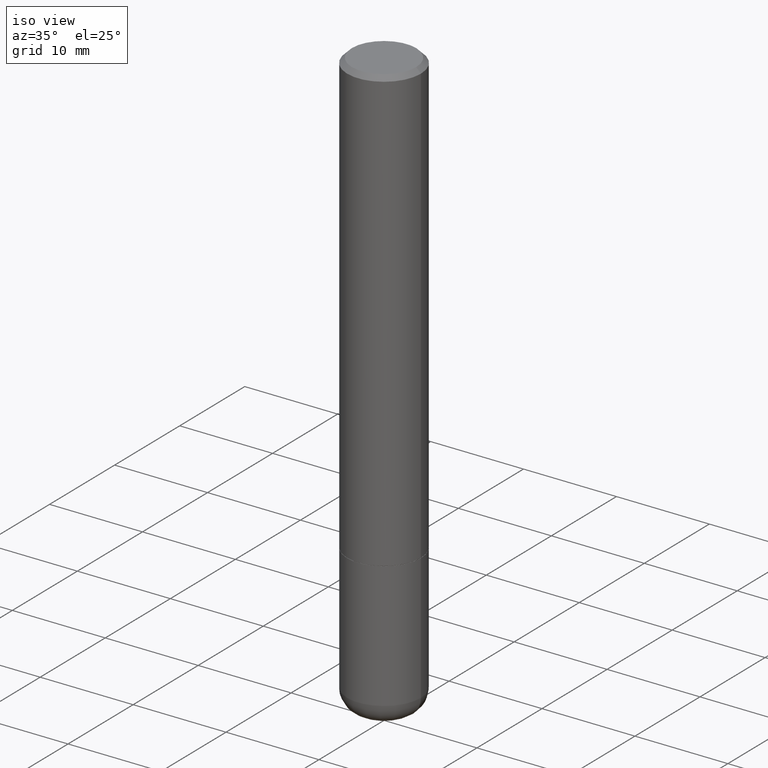
[diagram: clean part render]
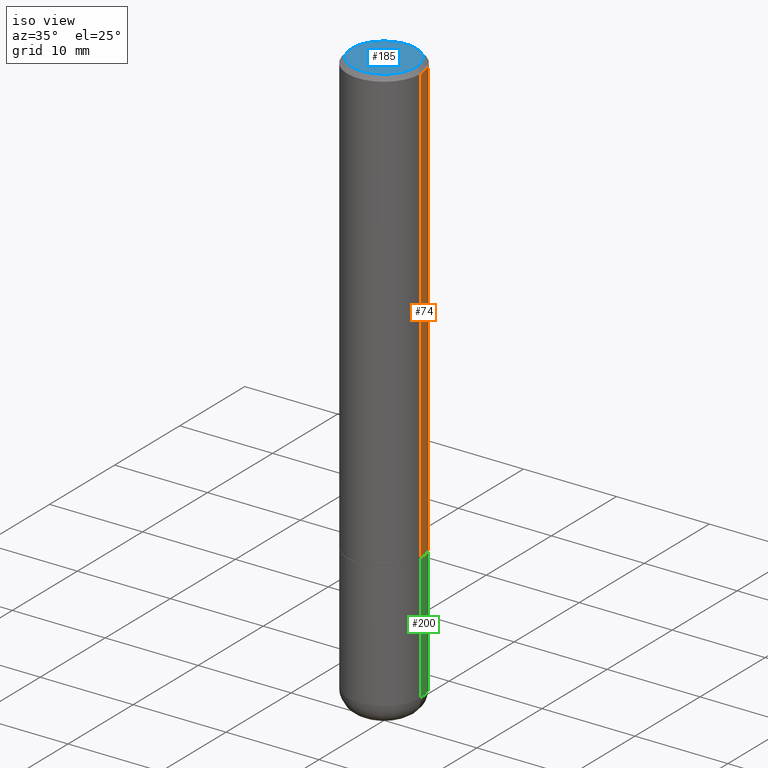
[diagram: same view with three faces highlighted in distinct colors, each labeled with its STEP entity id]
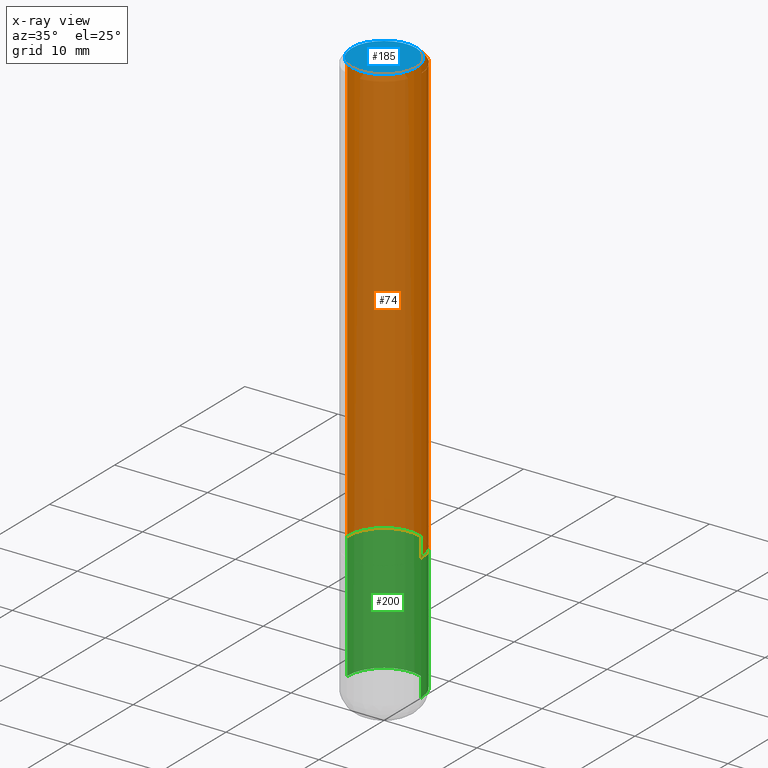
[diagram: x-ray of the same camera — body ghosted, the three highlighted faces saturated]
A machine part, iso view with three faces highlighted in distinct colors.
The next image is the same camera in x-ray (body ghosted, the three faces saturated) — at least one of them is partly hidden behind the body in this view.
Their STEP definitions:

[orange] entity #74 — the highlighted cylindrical surface (partial cylindrical patch) has radius 3.9688 mm, axis along (-0, 0, 1).
#23 = CARTESIAN_POINT ( 'NONE',  ( 0.1562500000000001388, -1.091087918388480160E-15, 7.619026212181157383E-30 ) ) ;
#34 = CYLINDRICAL_SURFACE ( 'NONE', #48, 0.1562500000000001388 ) ;
#36 = CARTESIAN_POINT ( 'NONE',  ( 0.1562500000000002220, -7.634123947380535662E-15, -1.874000000000000110 ) ) ;
#48 = AXIS2_PLACEMENT_3D ( 'NONE', #162, #325, #327 ) ;
#53 = ORIENTED_EDGE ( 'NONE', *, *, #138, .F. ) ;
#56 = CARTESIAN_POINT ( 'NONE',  ( 0.1562500000000000278, -1.141782438928665105E-15, -0.02000000000000003511 ) ) ;
#57 = ORIENTED_EDGE ( 'NONE', *, *, #94, .F. ) ;
#59 = AXIS2_PLACEMENT_3D ( 'NONE', #344, #147, #305 ) ;
#74 = ADVANCED_FACE ( 'NONE', ( #262 ), #34, .T. ) ;
#76 = VECTOR ( 'NONE', #135, 39.37007874015748143 ) ;
#94 = EDGE_CURVE ( 'NONE', #252, #357, #333, .T. ) ;
#108 = ORIENTED_EDGE ( 'NONE', *, *, #114, .T. ) ;
#114 = EDGE_CURVE ( 'NONE', #252, #389, #248, .T. ) ;
#135 = DIRECTION ( 'NONE',  ( -2.445468806185136877E-29, 3.491481338843145188E-15, 1.000000000000000000 ) ) ;
#138 = EDGE_CURVE ( 'NONE', #357, #213, #384, .T. ) ;
#142 = EDGE_LOOP ( 'NONE', ( #108, #352, #53, #57 ) ) ;
#147 = DIRECTION ( 'NONE',  ( -2.445468806185136597E-29, 3.491481338843145583E-15, 1.000000000000000000 ) ) ;
#158 = DIRECTION ( 'NONE',  ( 1.000000000000000000, -6.982962677686266711E-15, 0.000000000000000000 ) ) ;
#161 = AXIS2_PLACEMENT_3D ( 'NONE', #247, #216, #158 ) ;
#162 = CARTESIAN_POINT ( 'NONE',  ( 0.000000000000000000, 0.000000000000000000, 0.000000000000000000 ) ) ;
#164 = CARTESIAN_POINT ( 'NONE',  ( -0.1562500000000000278, 1.021258291611616467E-15, -0.02000000000000003511 ) ) ;
#173 = DIRECTION ( 'NONE',  ( -2.445468806185136877E-29, 3.491481338843145188E-15, 1.000000000000000000 ) ) ;
#180 = VECTOR ( 'NONE', #173, 39.37007874015748143 ) ;
#213 = VERTEX_POINT ( 'NONE', #164 ) ;
#216 = DIRECTION ( 'NONE',  ( -2.445468806185136597E-29, 3.491481338843145583E-15, 1.000000000000000000 ) ) ;
#246 = EDGE_CURVE ( 'NONE', #389, #213, #332, .T. ) ;
#247 = CARTESIAN_POINT ( 'NONE',  ( 4.890937612370281041E-31, -6.982962677686302702E-17, -0.02000000000000003511 ) ) ;
#248 = CIRCLE ( 'NONE', #59, 0.1562500000000002220 ) ;
#252 = VERTEX_POINT ( 'NONE', #36 ) ;
#262 = FACE_OUTER_BOUND ( 'NONE', #142, .T. ) ;
#305 = DIRECTION ( 'NONE',  ( 1.000000000000000000, -6.982962677686265922E-15, 0.000000000000000000 ) ) ;
#325 = DIRECTION ( 'NONE',  ( -2.445468806185136597E-29, 3.491481338843145583E-15, 1.000000000000000000 ) ) ;
#327 = DIRECTION ( 'NONE',  ( 1.000000000000000000, -6.982962677686266711E-15, 4.876176775795936353E-29 ) ) ;
#331 = CARTESIAN_POINT ( 'NONE',  ( -0.1562500000000001388, 1.110223024625157526E-15, -7.685836078523296765E-30 ) ) ;
#332 = LINE ( 'NONE', #331, #76 ) ;
#333 = LINE ( 'NONE', #23, #180 ) ;
#344 = CARTESIAN_POINT ( 'NONE',  ( 4.582808542790945516E-29, -6.543036028992054911E-15, -1.874000000000000110 ) ) ;
#352 = ORIENTED_EDGE ( 'NONE', *, *, #246, .T. ) ;
#357 = VERTEX_POINT ( 'NONE', #56 ) ;
#384 = CIRCLE ( 'NONE', #161, 0.1562500000000000278 ) ;
#389 = VERTEX_POINT ( 'NONE', #399 ) ;
#399 = CARTESIAN_POINT ( 'NONE',  ( -0.1562500000000002220, -2.196209803259299803E-15, -1.874000000000000110 ) ) ;

[blue] entity #185 — the highlighted planar face has unit normal (0, -0, -1).
#7 = FACE_OUTER_BOUND ( 'NONE', #91, .T. ) ;
#10 = DIRECTION ( 'NONE',  ( -2.445468806185136597E-29, 3.491481338843145583E-15, 1.000000000000000000 ) ) ;
#49 = ORIENTED_EDGE ( 'NONE', *, *, #256, .T. ) ;
#68 = CARTESIAN_POINT ( 'NONE',  ( 0.000000000000000000, 0.000000000000000000, 0.000000000000000000 ) ) ;
#85 = VERTEX_POINT ( 'NONE', #233 ) ;
#86 = CIRCLE ( 'NONE', #153, 0.1362500000000000377 ) ;
#89 = CARTESIAN_POINT ( 'NONE',  ( -0.1362500000000000377, 9.863434782231852123E-16, -6.775751096333141285E-30 ) ) ;
#91 = EDGE_LOOP ( 'NONE', ( #251, #49 ) ) ;
#102 = DIRECTION ( 'NONE',  ( 1.000000000000000000, -6.982962677686266711E-15, 4.876176775795936353E-29 ) ) ;
#105 = AXIS2_PLACEMENT_3D ( 'NONE', #374, #397, #300 ) ;
#153 = AXIS2_PLACEMENT_3D ( 'NONE', #68, #264, #194 ) ;
#185 = ADVANCED_FACE ( 'NONE', ( #7 ), #337, .F. ) ;
#194 = DIRECTION ( 'NONE',  ( 1.000000000000000000, -6.982962677686266711E-15, 4.876176775795936353E-29 ) ) ;
#221 = EDGE_CURVE ( 'NONE', #349, #85, #86, .T. ) ;
#233 = CARTESIAN_POINT ( 'NONE',  ( 0.1362500000000000377, -1.038262645562518322E-15, 6.957025900226697878E-30 ) ) ;
#251 = ORIENTED_EDGE ( 'NONE', *, *, #221, .T. ) ;
#256 = EDGE_CURVE ( 'NONE', #85, #349, #321, .T. ) ;
#264 = DIRECTION ( 'NONE',  ( -2.445468806185136597E-29, 3.491481338843145583E-15, 1.000000000000000000 ) ) ;
#295 = CARTESIAN_POINT ( 'NONE',  ( 0.000000000000000000, 0.000000000000000000, 0.000000000000000000 ) ) ;
#300 = DIRECTION ( 'NONE',  ( -1.000000000000000000, 6.982962677686265922E-15, -4.876176775795935793E-29 ) ) ;
#321 = CIRCLE ( 'NONE', #356, 0.1362500000000000377 ) ;
#337 = PLANE ( 'NONE',  #105 ) ;
#349 = VERTEX_POINT ( 'NONE', #89 ) ;
#356 = AXIS2_PLACEMENT_3D ( 'NONE', #295, #10, #102 ) ;
#374 = CARTESIAN_POINT ( 'NONE',  ( 9.514286648347541549E-16, 0.1362500000000000377, -4.757143324173787538E-16 ) ) ;
#397 = DIRECTION ( 'NONE',  ( 2.438088387897960049E-29, -3.491481338843145188E-15, -1.000000000000000000 ) ) ;

[green] entity #200 — the highlighted cylindrical surface (partial cylindrical patch) has radius 3.9688 mm, axis along (-0, 0, 1).
#3 = EDGE_CURVE ( 'NONE', #276, #123, #104, .T. ) ;
#12 = CARTESIAN_POINT ( 'NONE',  ( 0.1562500000000000000, -7.637615428719378669E-15, -1.875000000000000000 ) ) ;
#14 = LINE ( 'NONE', #302, #39 ) ;
#31 = ORIENTED_EDGE ( 'NONE', *, *, #125, .T. ) ;
#39 = VECTOR ( 'NONE', #101, 39.37007874015748143 ) ;
#66 = FACE_OUTER_BOUND ( 'NONE', #154, .T. ) ;
#81 = CARTESIAN_POINT ( 'NONE',  ( 0.000000000000000000, 0.000000000000000000, 0.000000000000000000 ) ) ;
#87 = ORIENTED_EDGE ( 'NONE', *, *, #3, .F. ) ;
#101 = DIRECTION ( 'NONE',  ( -2.445468806185136877E-29, 3.491481338843145188E-15, 1.000000000000000000 ) ) ;
#104 = CIRCLE ( 'NONE', #347, 0.1562500000000000000 ) ;
#112 = CIRCLE ( 'NONE', #137, 0.1562500000000000000 ) ;
#116 = DIRECTION ( 'NONE',  ( 1.000000000000000000, -6.982962677686262766E-15, 0.000000000000000000 ) ) ;
#118 = VERTEX_POINT ( 'NONE', #242 ) ;
#120 = ORIENTED_EDGE ( 'NONE', *, *, #231, .F. ) ;
#123 = VERTEX_POINT ( 'NONE', #382 ) ;
#125 = EDGE_CURVE ( 'NONE', #118, #410, #112, .T. ) ;
#137 = AXIS2_PLACEMENT_3D ( 'NONE', #278, #416, #116 ) ;
#154 = EDGE_LOOP ( 'NONE', ( #31, #281, #87, #120 ) ) ;
#170 = EDGE_CURVE ( 'NONE', #410, #123, #359, .T. ) ;
#181 = DIRECTION ( 'NONE',  ( 1.000000000000000000, -6.982962677686269077E-15, 0.000000000000000000 ) ) ;
#191 = DIRECTION ( 'NONE',  ( -2.445468806185136877E-29, 3.491481338843145188E-15, 1.000000000000000000 ) ) ;
#192 = VECTOR ( 'NONE', #191, 39.37007874015748143 ) ;
#200 = ADVANCED_FACE ( 'NONE', ( #66 ), #244, .T. ) ;
#205 = AXIS2_PLACEMENT_3D ( 'NONE', #81, #212, #348 ) ;
#212 = DIRECTION ( 'NONE',  ( -2.445468806185136597E-29, 3.491481338843145583E-15, 1.000000000000000000 ) ) ;
#231 = EDGE_CURVE ( 'NONE', #118, #276, #14, .T. ) ;
#242 = CARTESIAN_POINT ( 'NONE',  ( 0.1562499999999999722, -9.505557945000458485E-15, -2.410000000000000142 ) ) ;
#244 = CYLINDRICAL_SURFACE ( 'NONE', #205, 0.1562500000000000000 ) ;
#249 = CARTESIAN_POINT ( 'NONE',  ( -0.1562500000000000000, 1.110223024625156540E-15, -7.685836078523291160E-30 ) ) ;
#276 = VERTEX_POINT ( 'NONE', #12 ) ;
#277 = CARTESIAN_POINT ( 'NONE',  ( 4.585254011597131119E-29, -6.546527510330898707E-15, -1.875000000000000000 ) ) ;
#278 = CARTESIAN_POINT ( 'NONE',  ( 5.893579822906179826E-29, -8.414470026611981678E-15, -2.410000000000000142 ) ) ;
#281 = ORIENTED_EDGE ( 'NONE', *, *, #170, .T. ) ;
#302 = CARTESIAN_POINT ( 'NONE',  ( 0.1562500000000000000, -1.091087918388479174E-15, 7.619026212181150377E-30 ) ) ;
#304 = CARTESIAN_POINT ( 'NONE',  ( -0.1562499999999999722, -7.304247001986825138E-15, -2.410000000000000142 ) ) ;
#347 = AXIS2_PLACEMENT_3D ( 'NONE', #277, #386, #181 ) ;
#348 = DIRECTION ( 'NONE',  ( 1.000000000000000000, -6.982962677686266711E-15, 4.876176775795936353E-29 ) ) ;
#359 = LINE ( 'NONE', #249, #192 ) ;
#382 = CARTESIAN_POINT ( 'NONE',  ( -0.1562500000000000000, -6.370275743846283652E-15, -1.875000000000000000 ) ) ;
#386 = DIRECTION ( 'NONE',  ( -2.445468806185136597E-29, 3.491481338843145583E-15, 1.000000000000000000 ) ) ;
#410 = VERTEX_POINT ( 'NONE', #304 ) ;
#416 = DIRECTION ( 'NONE',  ( -2.445468806185136597E-29, 3.491481338843145583E-15, 1.000000000000000000 ) ) ;